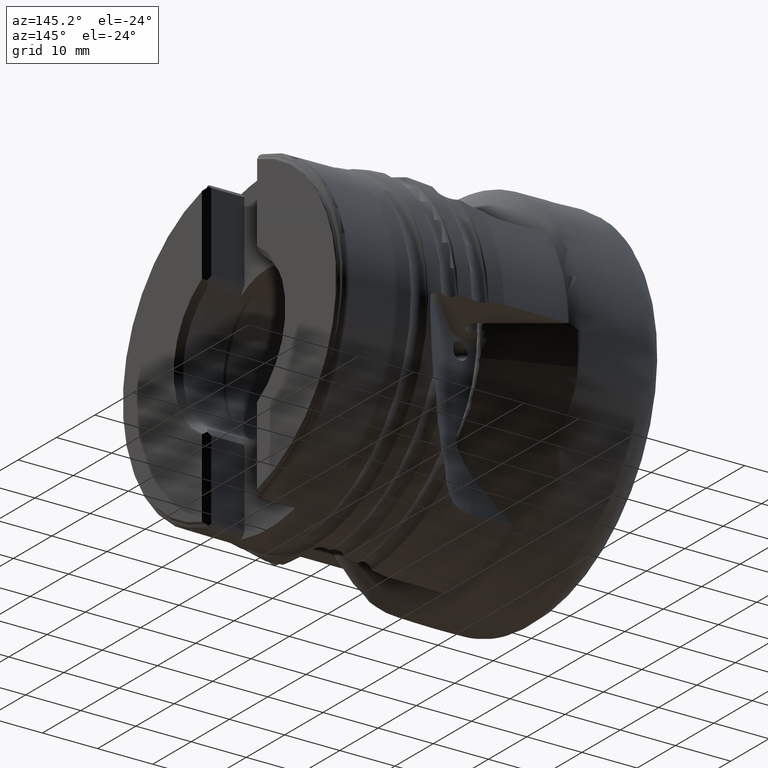
[diagram: clean part render]
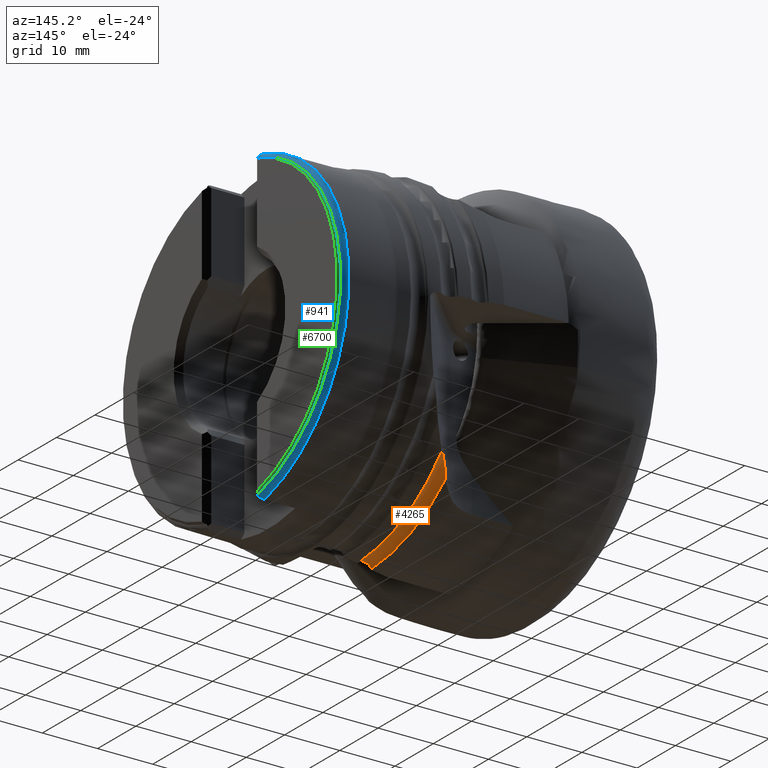
[diagram: same view with three faces highlighted in distinct colors, each labeled with its STEP entity id]
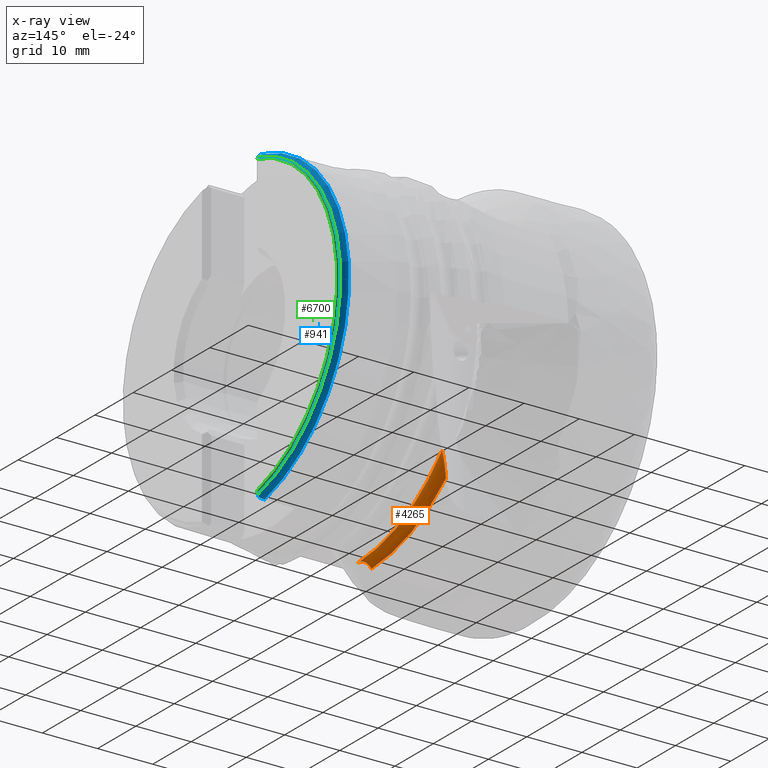
[diagram: x-ray of the same camera — body ghosted, the three highlighted faces saturated]
A machine part, auxiliary view with three faces highlighted in distinct colors.
The next image is the same camera in x-ray (body ghosted, the three faces saturated) — at least one of them is partly hidden behind the body in this view.
Their STEP definitions:

[orange] entity #4265 — the highlighted toroidal blend (fillet) surface has major radius 32.0319 mm and minor (blend) radius 1.5 mm.
#26 = TOROIDAL_SURFACE ( 'NONE', #3287, 32.03193033292637200, 1.500000000000004900 ) ;
#102 = CARTESIAN_POINT ( 'NONE',  ( 31.66121011223241400, 22.43328805087475800, -20.83344470708243200 ) ) ;
#158 = CARTESIAN_POINT ( 'NONE',  ( 31.50062679770254100, 1.100000000000215500, -30.54954262104958600 ) ) ;
#214 = B_SPLINE_CURVE_WITH_KNOTS ( 'NONE', 3,
 ( #5372, #1677, #3297, #102, #3832, #645, #4378, #1183, #4871, #1722, #5399, #2274 ),
 .UNSPECIFIED., .F., .F.,
 ( 4, 2, 2, 2, 2, 4 ),
 ( 2.888910863402644200E-007, 0.0005957187459954572100, 0.001191148600904574300, 0.002382008310722794000, 0.003572868020541013600, 0.004763727730359232900 ),
 .UNSPECIFIED. ) ;
#217 = VERTEX_POINT ( 'NONE', #379 ) ;
#284 = AXIS2_PLACEMENT_3D ( 'NONE', #5966, #5958, #5951 ) ;
#379 = CARTESIAN_POINT ( 'NONE',  ( 29.80269778743209800, 20.57477572607448500, -23.67546864615664900 ) ) ;
#389 = ORIENTED_EDGE ( 'NONE', *, *, #1608, .T. ) ;
#578 = ORIENTED_EDGE ( 'NONE', *, *, #4998, .F. ) ;
#645 = CARTESIAN_POINT ( 'NONE',  ( 31.16594055501903100, 21.93801849366137100, -21.20821051209675900 ) ) ;
#704 = CARTESIAN_POINT ( 'NONE',  ( 31.14710412005226600, 1.100000000000214800, -30.50744100971402200 ) ) ;
#748 = CARTESIAN_POINT ( 'NONE',  ( 29.80269778743209800, 0.0000000000000000000, 0.0000000000000000000 ) ) ;
#949 = ORIENTED_EDGE ( 'NONE', *, *, #6550, .T. ) ;
#1183 = CARTESIAN_POINT ( 'NONE',  ( 30.54713978676303300, 21.31921772540540200, -22.01165372389401400 ) ) ;
#1230 = CARTESIAN_POINT ( 'NONE',  ( 30.67488246744530800, 1.100000000000215300, -30.56875734672142600 ) ) ;
#1276 = DIRECTION ( 'NONE',  ( 0.0000000000000000000, 0.0000000000000000000, 1.000000000000000000 ) ) ;
#1376 = CIRCLE ( 'NONE', #284, 30.97813799155126800 ) ;
#1463 = FACE_OUTER_BOUND ( 'NONE', #6005, .T. ) ;
#1608 = EDGE_CURVE ( 'NONE', #6757, #3815, #1376, .T. ) ;
#1677 = CARTESIAN_POINT ( 'NONE',  ( 32.07703165821593000, 22.84910959685827300, -20.71138036197371000 ) ) ;
#1722 = CARTESIAN_POINT ( 'NONE',  ( 30.04710884428469000, 20.81918678292706900, -22.95964647125330800 ) ) ;
#1775 = CARTESIAN_POINT ( 'NONE',  ( 30.15997899461050100, 1.100000000000217500, -30.87650582320444000 ) ) ;
#2029 = CARTESIAN_POINT ( 'NONE',  ( 32.21443991157980200, 22.98651785022213500, -20.76692154713858700 ) ) ;
#2269 = VERTEX_POINT ( 'NONE', #2573 ) ;
#2274 = CARTESIAN_POINT ( 'NONE',  ( 29.80269778743209800, 20.57477572607448500, -23.67546864615664900 ) ) ;
#2327 = CARTESIAN_POINT ( 'NONE',  ( 29.92106722240000100, 1.100000000000219900, -31.13996456768563100 ) ) ;
#2340 = DIRECTION ( 'NONE',  ( -1.000000000000000000, -0.0000000000000000000, -0.0000000000000000000 ) ) ;
#2573 = CARTESIAN_POINT ( 'NONE',  ( 29.80269778743209800, 1.100000000000220600, -31.34707660681311500 ) ) ;
#2802 = CARTESIAN_POINT ( 'NONE',  ( 32.21443991157987300, 1.100000000000217900, -30.95860192940875800 ) ) ;
#2824 = CARTESIAN_POINT ( 'NONE',  ( 32.03706283004287100, 1.100000000000217000, -30.79909446606093600 ) ) ;
#2845 = CARTESIAN_POINT ( 'NONE',  ( 29.80269778743209800, 1.100000000000220600, -31.34707660681311500 ) ) ;
#3287 = AXIS2_PLACEMENT_3D ( 'NONE', #5977, #2340, #4917 ) ;
#3297 = CARTESIAN_POINT ( 'NONE',  ( 31.93230402791032300, 22.70438196655264600, -20.73140145095304000 ) ) ;
#3331 = B_SPLINE_CURVE_WITH_KNOTS ( 'NONE', 3,
 ( #2802, #5933, #2824, #6489, #3355, #158, #3883, #704, #4427, #1230, #4927, #1775, #5444, #2327, #5986, #2845 ),
 .UNSPECIFIED., .F., .F.,
 ( 4, 2, 2, 2, 2, 2, 2, 4 ),
 ( 0.007301926192801411400, 0.007656867672190542300, 0.008011809151579672400, 0.008366750630968804200, 0.008721692110357923800, 0.009431575069136175300, 0.009786516548525303600, 0.01014145802791443000 ),
 .UNSPECIFIED. ) ;
#3355 = CARTESIAN_POINT ( 'NONE',  ( 31.72752741268453700, 1.100000000000216100, -30.62394819707724700 ) ) ;
#3815 = VERTEX_POINT ( 'NONE', #4169 ) ;
#3832 = CARTESIAN_POINT ( 'NONE',  ( 31.53119253452537400, 22.30327047316771100, -20.91705893886685200 ) ) ;
#3883 = CARTESIAN_POINT ( 'NONE',  ( 31.38314156003973900, 1.100000000000215300, -30.52610560909417000 ) ) ;
#4072 = ORIENTED_EDGE ( 'NONE', *, *, #6069, .F. ) ;
#4169 = CARTESIAN_POINT ( 'NONE',  ( 32.21443991157987300, 1.100000000000217900, -30.95860192940875800 ) ) ;
#4265 = ADVANCED_FACE ( 'NONE', ( #1463 ), #26, .F. ) ;
#4378 = CARTESIAN_POINT ( 'NONE',  ( 30.94539887427354000, 21.71747681291589100, -21.46205682901186100 ) ) ;
#4415 = AXIS2_PLACEMENT_3D ( 'NONE', #748, #4468, #1276 ) ;
#4427 = CARTESIAN_POINT ( 'NONE',  ( 31.02604706500306300, 1.100000000000214800, -30.51229652163369700 ) ) ;
#4442 = CIRCLE ( 'NONE', #4415, 31.36637071440383200 ) ;
#4468 = DIRECTION ( 'NONE',  ( -1.000000000000000000, -0.0000000000000000000, -0.0000000000000000000 ) ) ;
#4871 = CARTESIAN_POINT ( 'NONE',  ( 30.36764337065010700, 21.13972130929247200, -22.31137679372040900 ) ) ;
#4917 = DIRECTION ( 'NONE',  ( 0.0000000000000000000, 0.0000000000000000000, 1.000000000000000000 ) ) ;
#4927 = CARTESIAN_POINT ( 'NONE',  ( 30.44807001374919500, 1.100000000000216100, -30.66366957841788100 ) ) ;
#4998 = EDGE_CURVE ( 'NONE', #6757, #217, #214, .T. ) ;
#5372 = CARTESIAN_POINT ( 'NONE',  ( 32.21443991157980200, 22.98651785022213500, -20.76692154713858700 ) ) ;
#5399 = CARTESIAN_POINT ( 'NONE',  ( 29.90699138349926400, 20.67906932214164000, -23.30576019817819500 ) ) ;
#5444 = CARTESIAN_POINT ( 'NONE',  ( 30.07383143295551900, 1.100000000000217500, -30.95762404395012600 ) ) ;
#5933 = CARTESIAN_POINT ( 'NONE',  ( 32.13134829844892000, 1.100000000000217200, -30.87437762699228800 ) ) ;
#5951 = DIRECTION ( 'NONE',  ( 0.0000000000000000000, 0.0000000000000000000, 1.000000000000000000 ) ) ;
#5958 = DIRECTION ( 'NONE',  ( -1.000000000000000000, -0.0000000000000000000, -0.0000000000000000000 ) ) ;
#5966 = CARTESIAN_POINT ( 'NONE',  ( 32.21443991157987300, 0.0000000000000000000, 0.0000000000000000000 ) ) ;
#5977 = CARTESIAN_POINT ( 'NONE',  ( 31.14695609378253500, 0.0000000000000000000, 0.0000000000000000000 ) ) ;
#5986 = CARTESIAN_POINT ( 'NONE',  ( 29.85516930608771000, 1.100000000000219500, -31.24103247904991300 ) ) ;
#6005 = EDGE_LOOP ( 'NONE', ( #578, #389, #949, #4072 ) ) ;
#6069 = EDGE_CURVE ( 'NONE', #217, #2269, #4442, .T. ) ;
#6489 = CARTESIAN_POINT ( 'NONE',  ( 31.83478545289247200, 1.100000000000216400, -30.67391870343750400 ) ) ;
#6550 = EDGE_CURVE ( 'NONE', #3815, #2269, #3331, .T. ) ;
#6757 = VERTEX_POINT ( 'NONE', #2029 ) ;

[blue] entity #941 — the highlighted toroidal blend (fillet) surface has major radius 28 mm and minor (blend) radius 1 mm.
#49 = CARTESIAN_POINT ( 'NONE',  ( 54.02164033070592100, 6.699975322414542400, 27.82946525781577000 ) ) ;
#131 = CARTESIAN_POINT ( 'NONE',  ( 54.10134094084784800, 6.578340940847843000, -27.70783087624514000 ) ) ;
#380 = CARTESIAN_POINT ( 'NONE',  ( 54.18058210492823400, 6.657582104928232000, 27.51209391051880000 ) ) ;
#527 = DIRECTION ( 'NONE',  ( 0.0000000000000000000, 0.0000000000000000000, 1.000000000000000000 ) ) ;
#636 = EDGE_CURVE ( 'NONE', #5367, #3150, #6596, .T. ) ;
#726 = DIRECTION ( 'NONE',  ( 0.0000000000000000000, 0.0000000000000000000, 1.000000000000000000 ) ) ;
#769 = VERTEX_POINT ( 'NONE', #1128 ) ;
#828 = ORIENTED_EDGE ( 'NONE', *, *, #2014, .T. ) ;
#898 = CARTESIAN_POINT ( 'NONE',  ( 54.14510314655780800, 6.622103146557798900, 27.61479711697120700 ) ) ;
#941 = ADVANCED_FACE ( 'NONE', ( #5782 ), #4255, .T. ) ;
#1117 = CARTESIAN_POINT ( 'NONE',  ( 53.41308515629793200, 7.010412606769224700, 28.13990254217045400 ) ) ;
#1128 = CARTESIAN_POINT ( 'NONE',  ( 53.22299999999999900, 7.010412606769227400, -28.13990254217045700 ) ) ;
#1357 = ORIENTED_EDGE ( 'NONE', *, *, #636, .T. ) ;
#1377 = B_SPLINE_CURVE_WITH_KNOTS ( 'NONE', 3,
 ( #4541, #5784, #4716, #2072, #3704, #6001, #5867, #5745 ),
 .UNSPECIFIED., .F., .F.,
 ( 4, 2, 2, 4 ),
 ( 1.573251697946456500E-017, 0.0002811415667797494900, 0.0005622831335594832500, 0.001124566267118950900 ),
 .UNSPECIFIED. ) ;
#2014 = EDGE_CURVE ( 'NONE', #3150, #3659, #5976, .T. ) ;
#2072 = CARTESIAN_POINT ( 'NONE',  ( 53.89539762205286200, 6.799839724874961400, -27.92932966027618800 ) ) ;
#2282 = EDGE_CURVE ( 'NONE', #3623, #769, #3773, .T. ) ;
#2319 = AXIS2_PLACEMENT_3D ( 'NONE', #3503, #3528, #3550 ) ;
#2422 = ORIENTED_EDGE ( 'NONE', *, *, #4925, .T. ) ;
#2475 = B_SPLINE_CURVE_WITH_KNOTS ( 'NONE', 3,
 ( #5615, #898, #380, #4096 ),
 .UNSPECIFIED., .F., .F.,
 ( 4, 4 ),
 ( 0.0007255815201059208900, 0.001060281320664125200 ),
 .UNSPECIFIED. ) ;
#3148 = DIRECTION ( 'NONE',  ( -1.000000000000000000, -0.0000000000000000000, -0.0000000000000000000 ) ) ;
#3150 = VERTEX_POINT ( 'NONE', #4244 ) ;
#3247 = CARTESIAN_POINT ( 'NONE',  ( 53.90267905525890800, 6.808216549189976000, 27.93770648459119600 ) ) ;
#3302 = EDGE_CURVE ( 'NONE', #3659, #769, #1377, .T. ) ;
#3503 = CARTESIAN_POINT ( 'NONE',  ( 53.22299999999999900, 0.0000000000000000000, 0.0000000000000000000 ) ) ;
#3506 = CARTESIAN_POINT ( 'NONE',  ( 54.10134094084657600, 6.578340940846575600, 27.70783087624780400 ) ) ;
#3528 = DIRECTION ( 'NONE',  ( -1.000000000000000000, -0.0000000000000000000, -0.0000000000000000000 ) ) ;
#3550 = DIRECTION ( 'NONE',  ( 0.0000000000000000000, 0.0000000000000000000, 1.000000000000000000 ) ) ;
#3623 = VERTEX_POINT ( 'NONE', #6123 ) ;
#3659 = VERTEX_POINT ( 'NONE', #5063 ) ;
#3704 = CARTESIAN_POINT ( 'NONE',  ( 53.82661819062963100, 6.847046101311433700, -27.97653603671265200 ) ) ;
#3773 = CIRCLE ( 'NONE', #2319, 29.00000000000000000 ) ;
#3789 = CARTESIAN_POINT ( 'NONE',  ( 54.10134094084657600, 6.578340940846575600, 27.70783087624780400 ) ) ;
#3797 = CARTESIAN_POINT ( 'NONE',  ( 54.20176197310684800, 0.0000000000000000000, 0.0000000000000000000 ) ) ;
#3868 = CARTESIAN_POINT ( 'NONE',  ( 53.22299999999999900, 0.0000000000000000000, 0.0000000000000000000 ) ) ;
#3948 = DIRECTION ( 'NONE',  ( -1.000000000000000000, -0.0000000000000000000, -0.0000000000000000000 ) ) ;
#4086 = EDGE_LOOP ( 'NONE', ( #828, #6141, #4156, #2422, #5826, #1357 ) ) ;
#4096 = CARTESIAN_POINT ( 'NONE',  ( 54.20176197310684800, 6.678761973106838400, 27.40284955085113300 ) ) ;
#4156 = ORIENTED_EDGE ( 'NONE', *, *, #2282, .F. ) ;
#4244 = CARTESIAN_POINT ( 'NONE',  ( 54.20176197310684800, 6.678761973106838400, -27.40284955085113300 ) ) ;
#4255 = TOROIDAL_SURFACE ( 'NONE', #5995, 28.00000000000000000, 1.000000000000002200 ) ;
#4541 = CARTESIAN_POINT ( 'NONE',  ( 54.10134094084784800, 6.578340940847843000, -27.70783087624514000 ) ) ;
#4716 = CARTESIAN_POINT ( 'NONE',  ( 54.01257265371423000, 6.695863990339967500, -27.82535392574120100 ) ) ;
#4925 = EDGE_CURVE ( 'NONE', #3623, #6174, #5983, .T. ) ;
#5063 = CARTESIAN_POINT ( 'NONE',  ( 54.10134094084784800, 6.578340940847843000, -27.70783087624514000 ) ) ;
#5367 = VERTEX_POINT ( 'NONE', #5428 ) ;
#5428 = CARTESIAN_POINT ( 'NONE',  ( 54.20176197310684800, 6.678761973106838400, 27.40284955085113300 ) ) ;
#5615 = CARTESIAN_POINT ( 'NONE',  ( 54.10134094084657600, 6.578340940846575600, 27.70783087624780400 ) ) ;
#5745 = CARTESIAN_POINT ( 'NONE',  ( 53.22299999999999900, 7.010412606769227400, -28.13990254217045700 ) ) ;
#5782 = FACE_OUTER_BOUND ( 'NONE', #4086, .T. ) ;
#5784 = CARTESIAN_POINT ( 'NONE',  ( 54.06143744496509400, 6.639239308320310500, -27.76872924371758700 ) ) ;
#5826 = ORIENTED_EDGE ( 'NONE', *, *, #6200, .T. ) ;
#5859 = CARTESIAN_POINT ( 'NONE',  ( 53.22299999999999900, 7.010412606769227400, 28.13990254217045700 ) ) ;
#5867 = CARTESIAN_POINT ( 'NONE',  ( 53.41359250579547100, 7.010412606769232700, -28.13990254217045400 ) ) ;
#5976 = B_SPLINE_CURVE_WITH_KNOTS ( 'NONE', 3,
 ( #6255, #6858, #6369, #131 ),
 .UNSPECIFIED., .F., .F.,
 ( 4, 4 ),
 ( 1.053010899989195100E-006, 0.0003374142194739294500 ),
 .UNSPECIFIED. ) ;
#5983 = B_SPLINE_CURVE_WITH_KNOTS ( 'NONE', 3,
 ( #5859, #1117, #6391, #3247, #49, #3789 ),
 .UNSPECIFIED., .F., .F.,
 ( 4, 2, 4 ),
 ( 0.0000000000000000000, 0.0005615639200816137100, 0.001123127840163227400 ),
 .UNSPECIFIED. ) ;
#5995 = AXIS2_PLACEMENT_3D ( 'NONE', #3868, #3948, #527 ) ;
#6001 = CARTESIAN_POINT ( 'NONE',  ( 53.60004716761967800, 6.963514005354815200, -28.09300394075604500 ) ) ;
#6114 = AXIS2_PLACEMENT_3D ( 'NONE', #3797, #3148, #726 ) ;
#6123 = CARTESIAN_POINT ( 'NONE',  ( 53.22299999999999900, 7.010412606769227400, 28.13990254217045700 ) ) ;
#6141 = ORIENTED_EDGE ( 'NONE', *, *, #3302, .T. ) ;
#6174 = VERTEX_POINT ( 'NONE', #3506 ) ;
#6200 = EDGE_CURVE ( 'NONE', #6174, #5367, #2475, .T. ) ;
#6255 = CARTESIAN_POINT ( 'NONE',  ( 54.20176197310684800, 6.678761973106838400, -27.40284955085113300 ) ) ;
#6369 = CARTESIAN_POINT ( 'NONE',  ( 54.14563565282588800, 6.622635652825883000, -27.61366506571425800 ) ) ;
#6391 = CARTESIAN_POINT ( 'NONE',  ( 53.59689386394917700, 6.964863410811115200, 28.09435334621234000 ) ) ;
#6596 = CIRCLE ( 'NONE', #6114, 28.20499999999999800 ) ;
#6858 = CARTESIAN_POINT ( 'NONE',  ( 54.18042301602023500, 6.657423016020226600, -27.51291448058744400 ) ) ;

[green] entity #6700 — the highlighted conical surface has half-angle 29.856 deg.
#447 = AXIS2_PLACEMENT_3D ( 'NONE', #6689, #915, #3019 ) ;
#570 = VERTEX_POINT ( 'NONE', #5616 ) ;
#636 = EDGE_CURVE ( 'NONE', #5367, #3150, #6596, .T. ) ;
#726 = DIRECTION ( 'NONE',  ( 0.0000000000000000000, 0.0000000000000000000, 1.000000000000000000 ) ) ;
#915 = DIRECTION ( 'NONE',  ( -1.000000000000000000, -0.0000000000000000000, -0.0000000000000000000 ) ) ;
#1026 = ORIENTED_EDGE ( 'NONE', *, *, #3135, .T. ) ;
#1342 =( BOUNDED_CURVE ( )  B_SPLINE_CURVE ( 3, ( #6279, #6256, #6188, #6178 ),
 .UNSPECIFIED., .F., .F. ) 
 B_SPLINE_CURVE_WITH_KNOTS ( ( 4, 4 ),
 ( 2.365681927427914800, 2.378338284934367100 ),
 .UNSPECIFIED. ) 
 CURVE ( )  GEOMETRIC_REPRESENTATION_ITEM ( )  RATIONAL_B_SPLINE_CURVE ( ( 1.000000000000000000, 0.9999866514291020400, 0.9999866514291020400, 1.000000000000000000 ) ) 
 REPRESENTATION_ITEM ( '' )  );
#1505 =( BOUNDED_CURVE ( )  B_SPLINE_CURVE ( 3, ( #1514, #1593, #1654, #1681 ),
 .UNSPECIFIED., .F., .T. ) 
 B_SPLINE_CURVE_WITH_KNOTS ( ( 4, 4 ),
 ( 3.904847022245219200, 3.917503379751671400 ),
 .UNSPECIFIED. ) 
 CURVE ( )  GEOMETRIC_REPRESENTATION_ITEM ( )  RATIONAL_B_SPLINE_CURVE ( ( 1.000000000000000000, 0.9999866514291020400, 0.9999866514291020400, 1.000000000000000000 ) ) 
 REPRESENTATION_ITEM ( '' )  );
#1514 = CARTESIAN_POINT ( 'NONE',  ( 54.62256494406126700, 7.099564944061262000, -27.04719990958082900 ) ) ;
#1584 = EDGE_CURVE ( 'NONE', #5367, #570, #1342, .T. ) ;
#1593 = CARTESIAN_POINT ( 'NONE',  ( 54.48321439891565600, 6.960214398915652200, -27.16647584608270800 ) ) ;
#1600 = ORIENTED_EDGE ( 'NONE', *, *, #1584, .T. ) ;
#1612 = FACE_OUTER_BOUND ( 'NONE', #5363, .T. ) ;
#1654 = CARTESIAN_POINT ( 'NONE',  ( 54.34294486953310600, 6.819944869533094900, -27.28502730899873900 ) ) ;
#1662 = ORIENTED_EDGE ( 'NONE', *, *, #636, .F. ) ;
#1681 = CARTESIAN_POINT ( 'NONE',  ( 54.20176197310684800, 6.678761973106838400, -27.40284955085113300 ) ) ;
#1980 = DIRECTION ( 'NONE',  ( 0.0000000000000000000, 0.0000000000000000000, 1.000000000000000000 ) ) ;
#2104 = DIRECTION ( 'NONE',  ( -1.000000000000000000, -0.0000000000000000000, -0.0000000000000000000 ) ) ;
#2168 = EDGE_CURVE ( 'NONE', #3091, #3150, #1505, .T. ) ;
#2632 = AXIS2_PLACEMENT_3D ( 'NONE', #5002, #2104, #1980 ) ;
#3019 = DIRECTION ( 'NONE',  ( 0.0000000000000000000, 0.0000000000000000000, 1.000000000000000000 ) ) ;
#3091 = VERTEX_POINT ( 'NONE', #3882 ) ;
#3135 = EDGE_CURVE ( 'NONE', #570, #3091, #4668, .T. ) ;
#3148 = DIRECTION ( 'NONE',  ( -1.000000000000000000, -0.0000000000000000000, -0.0000000000000000000 ) ) ;
#3150 = VERTEX_POINT ( 'NONE', #4244 ) ;
#3797 = CARTESIAN_POINT ( 'NONE',  ( 54.20176197310684800, 0.0000000000000000000, 0.0000000000000000000 ) ) ;
#3882 = CARTESIAN_POINT ( 'NONE',  ( 54.62256494406126700, 7.099564944061262000, -27.04719990958082900 ) ) ;
#3921 = CONICAL_SURFACE ( 'NONE', #447, 27.96345553295895300, 0.5210887949825945300 ) ;
#4244 = CARTESIAN_POINT ( 'NONE',  ( 54.20176197310684800, 6.678761973106838400, -27.40284955085113300 ) ) ;
#4625 = ORIENTED_EDGE ( 'NONE', *, *, #2168, .T. ) ;
#4668 = CIRCLE ( 'NONE', #2632, 27.96345553295895300 ) ;
#5002 = CARTESIAN_POINT ( 'NONE',  ( 54.62256494406126700, 0.0000000000000000000, 0.0000000000000000000 ) ) ;
#5363 = EDGE_LOOP ( 'NONE', ( #1662, #1600, #1026, #4625 ) ) ;
#5367 = VERTEX_POINT ( 'NONE', #5428 ) ;
#5428 = CARTESIAN_POINT ( 'NONE',  ( 54.20176197310684800, 6.678761973106838400, 27.40284955085113300 ) ) ;
#5616 = CARTESIAN_POINT ( 'NONE',  ( 54.62256494406126700, 7.099564944061262000, 27.04719990958082900 ) ) ;
#6114 = AXIS2_PLACEMENT_3D ( 'NONE', #3797, #3148, #726 ) ;
#6178 = CARTESIAN_POINT ( 'NONE',  ( 54.62256494406126700, 7.099564944061262000, 27.04719990958082900 ) ) ;
#6188 = CARTESIAN_POINT ( 'NONE',  ( 54.48321439891565600, 6.960214398915652200, 27.16647584608271200 ) ) ;
#6256 = CARTESIAN_POINT ( 'NONE',  ( 54.34294486953309900, 6.819944869533094900, 27.28502730899875000 ) ) ;
#6279 = CARTESIAN_POINT ( 'NONE',  ( 54.20176197310684800, 6.678761973106838400, 27.40284955085113300 ) ) ;
#6596 = CIRCLE ( 'NONE', #6114, 28.20499999999999800 ) ;
#6689 = CARTESIAN_POINT ( 'NONE',  ( 54.62256494406126700, 0.0000000000000000000, 0.0000000000000000000 ) ) ;
#6700 = ADVANCED_FACE ( 'NONE', ( #1612 ), #3921, .T. ) ;